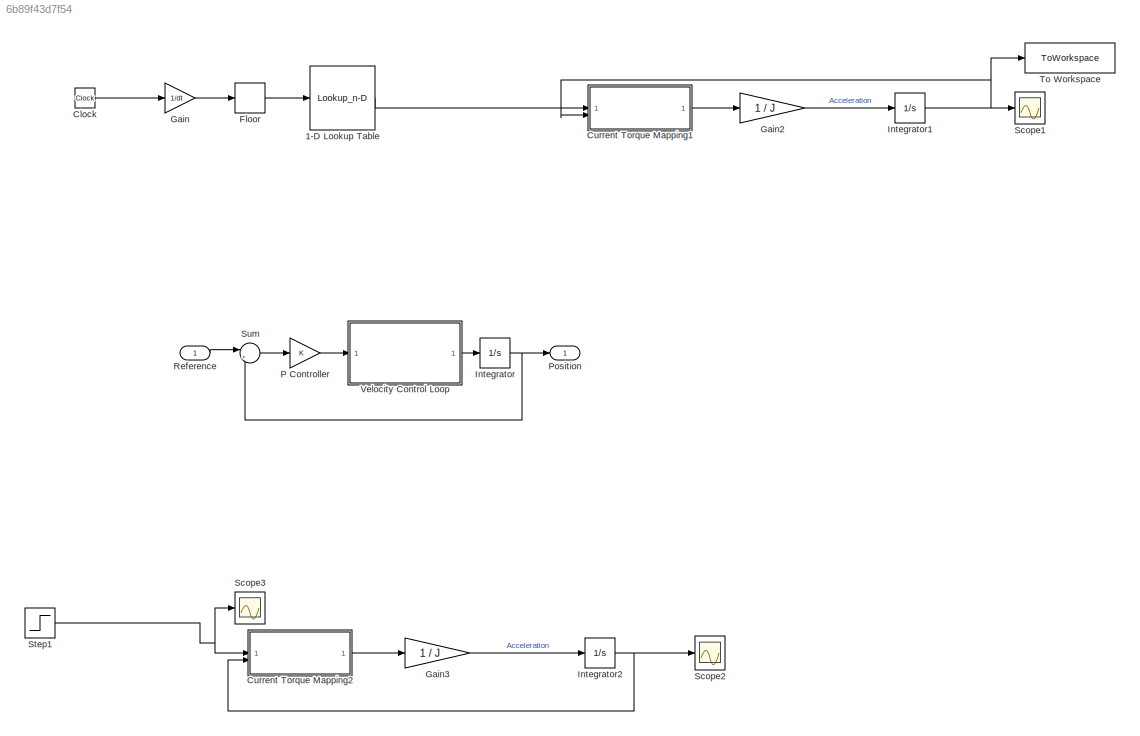
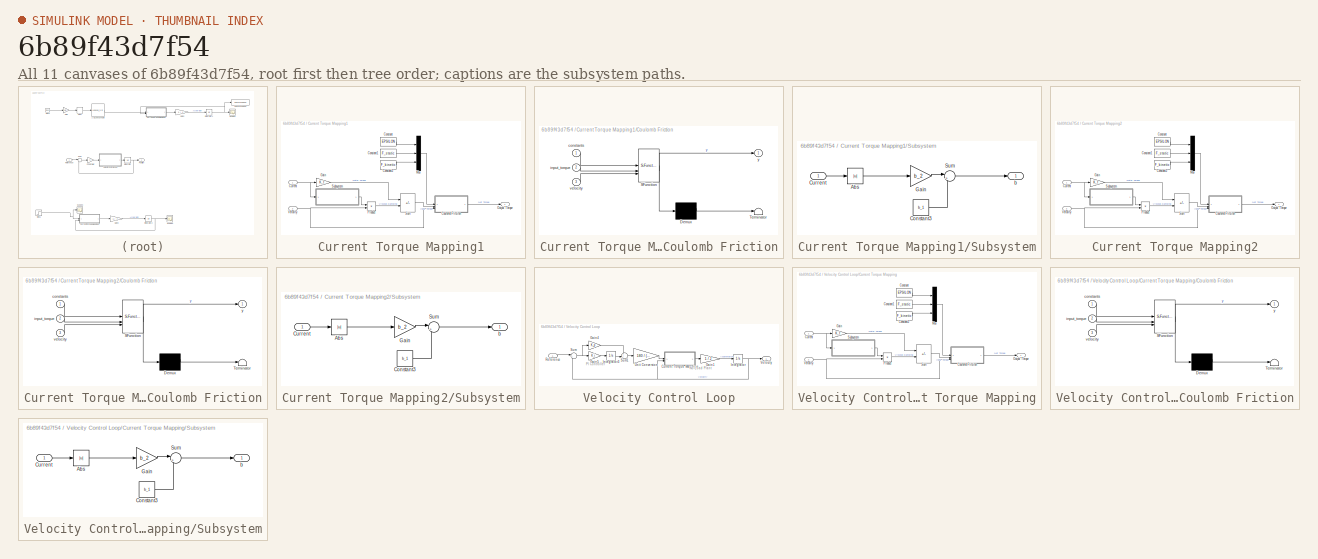
[diagram: thumbnail index - all 11 canvases of the model, root first then tree order]
MODEL slx_6b89f43d7f54
KIND model
CONFIG AbsTol = auto
CONFIG EnableMultiTasking = off
CONFIG FixedStep = auto
CONFIG MaxStep = auto
CONFIG MinStep = auto
CONFIG RelTol = 1e-3
CONFIG SampleTimeConstraint = Unconstrained
CONFIG SolverName = VariableStepAuto
CONFIG StartTime = 0.0
CONFIG StopTime = 10
BLOCK [Lookup_n-D] 1-D Lookup Table
  BreakpointsForDimension1 = [1:numel(currents)]'
  Commented = on
  InputPortMap = u0
  InternalRulePriority = Speed
  NumberOfTableDimensions = 1
  RndMeth = Simplest
  Table = currents
BLOCK [Clock] Clock
  Commented = on
BLOCK [SubSystem] Current Torque Mapping1
  Commented = on
BLOCK [Constant] Current Torque Mapping1/Constant
  Value = EPSILON
BLOCK [Constant] Current Torque Mapping1/Constant1
  Value = F_static
BLOCK [Constant] Current Torque Mapping1/Constant2
  Value = F_kinetic
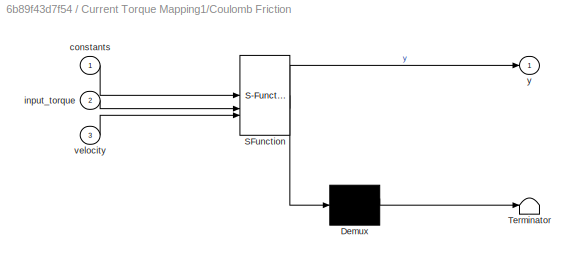
BLOCK [SubSystem] Current Torque Mapping1/Coulomb Friction
  ErrorFcn = Stateflow.Translate.translate
  LibrarySourceBlock = simulink/User-Defined\nFunctions/MATLAB Function
  PermitHierarchicalResolution = ExplicitOnly
  SFBlockType = MATLAB Function
  TreatAsAtomicUnit = on
BLOCK [Demux] Current Torque Mapping1/Coulomb Friction/ Demux 
  Outputs = 1
BLOCK [S-Function] Current Torque Mapping1/Coulomb Friction/ SFunction 
  EnableBusSupport = on
  FunctionName = sf_sfun
  PortCounts = [3 2]
  SFcnIsStateOwnerBlock = off
  SFunctionDeploymentMode = off
  Tag = Stateflow S-Function 2
BLOCK [Terminator] Current Torque Mapping1/Coulomb Friction/ Terminator 
BLOCK [Inport] Current Torque Mapping1/Coulomb Friction/constants
BLOCK [Inport] Current Torque Mapping1/Coulomb Friction/input_torque
  Port = 2
BLOCK [Inport] Current Torque Mapping1/Coulomb Friction/velocity
  Port = 3
BLOCK [Outport] Current Torque Mapping1/Coulomb Friction/y
BLOCK [Inport] Current Torque Mapping1/Current
BLOCK [Gain] Current Torque Mapping1/Gain
  Gain = K_t
BLOCK [Mux] Current Torque Mapping1/Mux
  DisplayOption = bar
  Inputs = 3
BLOCK [Outport] Current Torque Mapping1/Output Torque
BLOCK [Product] Current Torque Mapping1/Product
BLOCK [SubSystem] Current Torque Mapping1/Subsystem
BLOCK [Abs] Current Torque Mapping1/Subsystem/Abs
  SaturateOnIntegerOverflow = off
BLOCK [Constant] Current Torque Mapping1/Subsystem/Constant3
  Value = b_1
BLOCK [Inport] Current Torque Mapping1/Subsystem/Current
BLOCK [Gain] Current Torque Mapping1/Subsystem/Gain
  Gain = b_2
BLOCK [Sum] Current Torque Mapping1/Subsystem/Sum
  Inputs = |++
BLOCK [Outport] Current Torque Mapping1/Subsystem/b
BLOCK [Sum] Current Torque Mapping1/Sum
  IconShape = rectangular
  Inputs = +-
BLOCK [Inport] Current Torque Mapping1/Velocity
  Port = 2
BLOCK [SubSystem] Current Torque Mapping2
  Commented = on
BLOCK [Constant] Current Torque Mapping2/Constant
  Value = EPSILON
BLOCK [Constant] Current Torque Mapping2/Constant1
  Value = F_static
BLOCK [Constant] Current Torque Mapping2/Constant2
  Value = F_kinetic
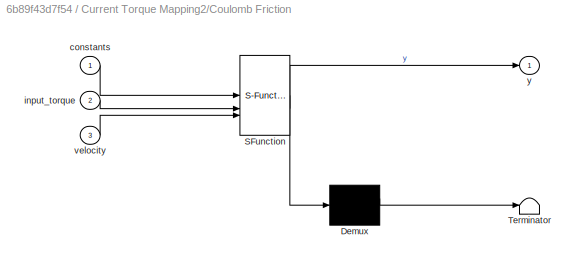
BLOCK [SubSystem] Current Torque Mapping2/Coulomb Friction
  ErrorFcn = Stateflow.Translate.translate
  LibrarySourceBlock = simulink/User-Defined\nFunctions/MATLAB Function
  PermitHierarchicalResolution = ExplicitOnly
  SFBlockType = MATLAB Function
  TreatAsAtomicUnit = on
BLOCK [Demux] Current Torque Mapping2/Coulomb Friction/ Demux 
  Outputs = 1
BLOCK [S-Function] Current Torque Mapping2/Coulomb Friction/ SFunction 
  EnableBusSupport = on
  FunctionName = sf_sfun
  PortCounts = [3 2]
  SFcnIsStateOwnerBlock = off
  SFunctionDeploymentMode = off
  Tag = Stateflow S-Function 3
BLOCK [Terminator] Current Torque Mapping2/Coulomb Friction/ Terminator 
BLOCK [Inport] Current Torque Mapping2/Coulomb Friction/constants
BLOCK [Inport] Current Torque Mapping2/Coulomb Friction/input_torque
  Port = 2
BLOCK [Inport] Current Torque Mapping2/Coulomb Friction/velocity
  Port = 3
BLOCK [Outport] Current Torque Mapping2/Coulomb Friction/y
BLOCK [Inport] Current Torque Mapping2/Current
BLOCK [Gain] Current Torque Mapping2/Gain
  Gain = K_t
BLOCK [Mux] Current Torque Mapping2/Mux
  DisplayOption = bar
  Inputs = 3
BLOCK [Outport] Current Torque Mapping2/Output Torque
BLOCK [Product] Current Torque Mapping2/Product
BLOCK [SubSystem] Current Torque Mapping2/Subsystem
BLOCK [Abs] Current Torque Mapping2/Subsystem/Abs
  SaturateOnIntegerOverflow = off
BLOCK [Constant] Current Torque Mapping2/Subsystem/Constant3
  Value = b_1
BLOCK [Inport] Current Torque Mapping2/Subsystem/Current
BLOCK [Gain] Current Torque Mapping2/Subsystem/Gain
  Gain = b_2
BLOCK [Sum] Current Torque Mapping2/Subsystem/Sum
  Inputs = |++
BLOCK [Outport] Current Torque Mapping2/Subsystem/b
BLOCK [Sum] Current Torque Mapping2/Sum
  IconShape = rectangular
  Inputs = +-
BLOCK [Inport] Current Torque Mapping2/Velocity
  Port = 2
BLOCK [Rounding] Floor
  Commented = on
BLOCK [Gain] Gain
  Commented = on
  Gain = 1/dt
BLOCK [Gain] Gain2
  Commented = on
  Gain = 1 / J
BLOCK [Gain] Gain3
  Commented = on
  Gain = 1 / J
BLOCK [Integrator] Integrator
BLOCK [Integrator] Integrator1
  Commented = on
BLOCK [Integrator] Integrator2
  Commented = on
BLOCK [Gain] P Controller
  Gain = K
BLOCK [Outport] Position
BLOCK [Inport] Reference
BLOCK [Scope] Scope1
  Commented = on
  Floating = off
  NumInputPorts = 1
  ScopeSpecificationString = Simulink.scopes.TimeScopeBlockCfg('CurrentConfiguration', extmgr.ConfigurationSet(extmgr.Configuration('Core','General UI',true),extmgr.Configuration('Core','Source UI',true),extmgr.Configuration('Sources','WiredSimulink',true,'DataLoggingVariableName','ScopeData1'),extmgr.Configuration('Visuals','Time Domain',true,'SerializedDisplays',{struct('MinYLimReal','-0.23088','MaxYLimReal','2.07789','YLab...<+1399ch>
BLOCK [Scope] Scope2
  Commented = on
  Floating = off
  NumInputPorts = 1
  ScopeSpecificationString = Simulink.scopes.TimeScopeBlockCfg('CurrentConfiguration', extmgr.ConfigurationSet(extmgr.Configuration('Core','General UI',true),extmgr.Configuration('Core','Source UI',true),extmgr.Configuration('Sources','WiredSimulink',true,'DataLoggingVariableName','ScopeData1'),extmgr.Configuration('Visuals','Time Domain',true,'SerializedDisplays',{struct('MinYLimReal','-0.1032','MaxYLimReal','0.92881','YLabe...<+1722ch>
BLOCK [Scope] Scope3
  Commented = on
  Floating = off
  NumInputPorts = 1
  ScopeSpecificationString = Simulink.scopes.TimeScopeBlockCfg('CurrentConfiguration', extmgr.ConfigurationSet(extmgr.Configuration('Core','General UI',true),extmgr.Configuration('Core','Source UI',true),extmgr.Configuration('Sources','WiredSimulink',true,'DataLoggingVariableName','ScopeData1'),extmgr.Configuration('Visuals','Time Domain',true,'SerializedDisplays',{struct('MinYLimReal','0.90986','MaxYLimReal','2.90986','YLabe...<+1362ch>
BLOCK [Step] Step1
  After = 0.1 * 180 / (pi * 3)
  Commented = on
  SampleTime = 0
  Time = 0
BLOCK [Sum] Sum
  Inputs = |+-
BLOCK [ToWorkspace] To Workspace
  Commented = on
  FixptAsFi = on
  MaxDataPoints = inf
  SampleTime = -1
  SaveFormat = Timeseries
  VariableName = velocity
BLOCK [SubSystem] Velocity Control Loop
BLOCK [SubSystem] Velocity Control Loop/Current Torque Mapping
BLOCK [Constant] Velocity Control Loop/Current Torque Mapping/Constant
  Value = EPSILON
BLOCK [Constant] Velocity Control Loop/Current Torque Mapping/Constant1
  Value = F_static
BLOCK [Constant] Velocity Control Loop/Current Torque Mapping/Constant2
  Value = F_kinetic
BLOCK [SubSystem] Velocity Control Loop/Current Torque Mapping/Coulomb Friction
  ErrorFcn = Stateflow.Translate.translate
  LibrarySourceBlock = simulink/User-Defined\nFunctions/MATLAB Function
  PermitHierarchicalResolution = ExplicitOnly
  SFBlockType = MATLAB Function
  TreatAsAtomicUnit = on
BLOCK [Demux] Velocity Control Loop/Current Torque Mapping/Coulomb Friction/ Demux 
  Outputs = 1
BLOCK [S-Function] Velocity Control Loop/Current Torque Mapping/Coulomb Friction/ SFunction 
  EnableBusSupport = on
  FunctionName = sf_sfun
  PortCounts = [3 2]
  SFcnIsStateOwnerBlock = off
  SFunctionDeploymentMode = off
  Tag = Stateflow S-Function 1
BLOCK [Terminator] Velocity Control Loop/Current Torque Mapping/Coulomb Friction/ Terminator 
BLOCK [Inport] Velocity Control Loop/Current Torque Mapping/Coulomb Friction/constants
BLOCK [Inport] Velocity Control Loop/Current Torque Mapping/Coulomb Friction/input_torque
  Port = 2
BLOCK [Inport] Velocity Control Loop/Current Torque Mapping/Coulomb Friction/velocity
  Port = 3
BLOCK [Outport] Velocity Control Loop/Current Torque Mapping/Coulomb Friction/y
BLOCK [Inport] Velocity Control Loop/Current Torque Mapping/Current
BLOCK [Gain] Velocity Control Loop/Current Torque Mapping/Gain
  Gain = K_t
BLOCK [Mux] Velocity Control Loop/Current Torque Mapping/Mux
  DisplayOption = bar
  Inputs = 3
BLOCK [Outport] Velocity Control Loop/Current Torque Mapping/Output Torque
BLOCK [Product] Velocity Control Loop/Current Torque Mapping/Product
BLOCK [SubSystem] Velocity Control Loop/Current Torque Mapping/Subsystem
BLOCK [Abs] Velocity Control Loop/Current Torque Mapping/Subsystem/Abs
  SaturateOnIntegerOverflow = off
BLOCK [Constant] Velocity Control Loop/Current Torque Mapping/Subsystem/Constant3
  Value = b_1
BLOCK [Inport] Velocity Control Loop/Current Torque Mapping/Subsystem/Current
BLOCK [Gain] Velocity Control Loop/Current Torque Mapping/Subsystem/Gain
  Gain = b_2
BLOCK [Sum] Velocity Control Loop/Current Torque Mapping/Subsystem/Sum
  Inputs = |++
BLOCK [Outport] Velocity Control Loop/Current Torque Mapping/Subsystem/b
BLOCK [Sum] Velocity Control Loop/Current Torque Mapping/Sum
  IconShape = rectangular
  Inputs = +-
BLOCK [Inport] Velocity Control Loop/Current Torque Mapping/Velocity
  Port = 2
BLOCK [Gain] Velocity Control Loop/Gain1
  Gain = 1 / J
BLOCK [Gain] Velocity Control Loop/Gain4
  Gain = K_p
BLOCK [Gain] Velocity Control Loop/Gain5
  Gain = K_i
BLOCK [Integrator] Velocity Control Loop/Integrator
BLOCK [Integrator] Velocity Control Loop/Integrator3
BLOCK [Inport] Velocity Control Loop/Reference
BLOCK [Sum] Velocity Control Loop/Sum
  Inputs = |+-
BLOCK [Sum] Velocity Control Loop/Sum1
  Inputs = ++|
BLOCK [Gain] Velocity Control Loop/Unit Conversion
  Gain = 180 / (pi * 3)
BLOCK [Outport] Velocity Control Loop/Velocity
ANNOTATION Velocity Control Loop: No-Load Plant
ANNOTATION Velocity Control Loop: PI Controller
LINE 1-D Lookup Table:1 -> Current Torque Mapping1:1
LINE Clock:1 -> Gain:1
LINE Current Torque Mapping1/Constant1:1 -> Current Torque Mapping1/Mux:2
LINE Current Torque Mapping1/Constant2:1 -> Current Torque Mapping1/Mux:3
LINE Current Torque Mapping1/Constant:1 -> Current Torque Mapping1/Mux:1
LINE Current Torque Mapping1/Coulomb Friction:1 -> Current Torque Mapping1/Output Torque:1
NET Current Torque Mapping1/Current:1 -> Current Torque Mapping1/Gain:1, Current Torque Mapping1/Subsystem:1
LINE Current Torque Mapping1/Gain:1 -> Current Torque Mapping1/Sum:1
LINE Current Torque Mapping1/Mux:1 -> Current Torque Mapping1/Coulomb Friction:1
LINE Current Torque Mapping1/Product:1 -> Current Torque Mapping1/Sum:2
LINE Current Torque Mapping1/Subsystem/Abs:1 -> Current Torque Mapping1/Subsystem/Gain:1
LINE Current Torque Mapping1/Subsystem/Constant3:1 -> Current Torque Mapping1/Subsystem/Sum:2
LINE Current Torque Mapping1/Subsystem/Current:1 -> Current Torque Mapping1/Subsystem/Abs:1
LINE Current Torque Mapping1/Subsystem/Gain:1 -> Current Torque Mapping1/Subsystem/Sum:1
LINE Current Torque Mapping1/Subsystem/Sum:1 -> Current Torque Mapping1/Subsystem/b:1
LINE Current Torque Mapping1/Subsystem:1 -> Current Torque Mapping1/Product:1
LINE Current Torque Mapping1/Sum:1 -> Current Torque Mapping1/Coulomb Friction:2
NET Current Torque Mapping1/Velocity:1 -> Current Torque Mapping1/Coulomb Friction:3, Current Torque Mapping1/Product:2
LINE Current Torque Mapping1:1 -> Gain2:1
LINE Current Torque Mapping2/Constant1:1 -> Current Torque Mapping2/Mux:2
LINE Current Torque Mapping2/Constant2:1 -> Current Torque Mapping2/Mux:3
LINE Current Torque Mapping2/Constant:1 -> Current Torque Mapping2/Mux:1
LINE Current Torque Mapping2/Coulomb Friction:1 -> Current Torque Mapping2/Output Torque:1
NET Current Torque Mapping2/Current:1 -> Current Torque Mapping2/Gain:1, Current Torque Mapping2/Subsystem:1
LINE Current Torque Mapping2/Gain:1 -> Current Torque Mapping2/Sum:1
LINE Current Torque Mapping2/Mux:1 -> Current Torque Mapping2/Coulomb Friction:1
LINE Current Torque Mapping2/Product:1 -> Current Torque Mapping2/Sum:2
LINE Current Torque Mapping2/Subsystem/Abs:1 -> Current Torque Mapping2/Subsystem/Gain:1
LINE Current Torque Mapping2/Subsystem/Constant3:1 -> Current Torque Mapping2/Subsystem/Sum:2
LINE Current Torque Mapping2/Subsystem/Current:1 -> Current Torque Mapping2/Subsystem/Abs:1
LINE Current Torque Mapping2/Subsystem/Gain:1 -> Current Torque Mapping2/Subsystem/Sum:1
LINE Current Torque Mapping2/Subsystem/Sum:1 -> Current Torque Mapping2/Subsystem/b:1
LINE Current Torque Mapping2/Subsystem:1 -> Current Torque Mapping2/Product:1
LINE Current Torque Mapping2/Sum:1 -> Current Torque Mapping2/Coulomb Friction:2
NET Current Torque Mapping2/Velocity:1 -> Current Torque Mapping2/Coulomb Friction:3, Current Torque Mapping2/Product:2
LINE Current Torque Mapping2:1 -> Gain3:1
LINE Floor:1 -> 1-D Lookup Table:1
LINE Gain2:1 -> Integrator1:1
LINE Gain3:1 -> Integrator2:1
LINE Gain:1 -> Floor:1
NET Integrator1:1 -> Current Torque Mapping1:2, Scope1:1, To Workspace:1
NET Integrator2:1 -> Current Torque Mapping2:2, Scope2:1
NET Integrator:1 -> Position:1, Sum:2
LINE P Controller:1 -> Velocity Control Loop:1
LINE Reference:1 -> Sum:1
NET Step1:1 -> Current Torque Mapping2:1, Scope3:1
LINE Sum:1 -> P Controller:1
LINE Velocity Control Loop/Current Torque Mapping/Constant1:1 -> Velocity Control Loop/Current Torque Mapping/Mux:2
LINE Velocity Control Loop/Current Torque Mapping/Constant2:1 -> Velocity Control Loop/Current Torque Mapping/Mux:3
LINE Velocity Control Loop/Current Torque Mapping/Constant:1 -> Velocity Control Loop/Current Torque Mapping/Mux:1
LINE Velocity Control Loop/Current Torque Mapping/Coulomb Friction:1 -> Velocity Control Loop/Current Torque Mapping/Output Torque:1
NET Velocity Control Loop/Current Torque Mapping/Current:1 -> Velocity Control Loop/Current Torque Mapping/Gain:1, Velocity Control Loop/Current Torque Mapping/Subsystem:1
LINE Velocity Control Loop/Current Torque Mapping/Gain:1 -> Velocity Control Loop/Current Torque Mapping/Sum:1
LINE Velocity Control Loop/Current Torque Mapping/Mux:1 -> Velocity Control Loop/Current Torque Mapping/Coulomb Friction:1
LINE Velocity Control Loop/Current Torque Mapping/Product:1 -> Velocity Control Loop/Current Torque Mapping/Sum:2
LINE Velocity Control Loop/Current Torque Mapping/Subsystem/Abs:1 -> Velocity Control Loop/Current Torque Mapping/Subsystem/Gain:1
LINE Velocity Control Loop/Current Torque Mapping/Subsystem/Constant3:1 -> Velocity Control Loop/Current Torque Mapping/Subsystem/Sum:2
LINE Velocity Control Loop/Current Torque Mapping/Subsystem/Current:1 -> Velocity Control Loop/Current Torque Mapping/Subsystem/Abs:1
LINE Velocity Control Loop/Current Torque Mapping/Subsystem/Gain:1 -> Velocity Control Loop/Current Torque Mapping/Subsystem/Sum:1
LINE Velocity Control Loop/Current Torque Mapping/Subsystem/Sum:1 -> Velocity Control Loop/Current Torque Mapping/Subsystem/b:1
LINE Velocity Control Loop/Current Torque Mapping/Subsystem:1 -> Velocity Control Loop/Current Torque Mapping/Product:1
LINE Velocity Control Loop/Current Torque Mapping/Sum:1 -> Velocity Control Loop/Current Torque Mapping/Coulomb Friction:2
NET Velocity Control Loop/Current Torque Mapping/Velocity:1 -> Velocity Control Loop/Current Torque Mapping/Coulomb Friction:3, Velocity Control Loop/Current Torque Mapping/Product:2
LINE Velocity Control Loop/Current Torque Mapping:1 -> Velocity Control Loop/Gain1:1
LINE Velocity Control Loop/Gain1:1 -> Velocity Control Loop/Integrator:1
LINE Velocity Control Loop/Gain4:1 -> Velocity Control Loop/Sum1:1
LINE Velocity Control Loop/Gain5:1 -> Velocity Control Loop/Integrator3:1
LINE Velocity Control Loop/Integrator3:1 -> Velocity Control Loop/Sum1:2
NET Velocity Control Loop/Integrator:1 -> Velocity Control Loop/Current Torque Mapping:2, Velocity Control Loop/Sum:2, Velocity Control Loop/Velocity:1
LINE Velocity Control Loop/Reference:1 -> Velocity Control Loop/Sum:1
LINE Velocity Control Loop/Sum1:1 -> Velocity Control Loop/Unit Conversion:1
NET Velocity Control Loop/Sum:1 -> Velocity Control Loop/Gain4:1, Velocity Control Loop/Gain5:1
LINE Velocity Control Loop/Unit Conversion:1 -> Velocity Control Loop/Current Torque Mapping:1
LINE Velocity Control Loop:1 -> Integrator:1
note: NET lines group one-source signal fan-out (src -> all destinations, sorted); 1:1 wires keep LINE
CHART Current Torque Mapping1/Coulomb Friction states=1 transitions=1
  STATE_LABEL 'eML_blk_kernel()'
  STATE_LABEL 'SCRIPT:\nfunction y = fcn(constants, input_torque, velocity)\n    EPSILON = constants(1);\n    F_stat = constants(2);\n    F_c = constants(3);\n\n\n    if abs(velocity) < EPSILON % no motion\n        if abs(input_torque) < abs(F_stat) % insufficient torque\n            y = 0;\n            return\n        end\n\n        % reduce torque by static friction\n        static_friction = -1 * sign(input_torque) * F_sta...<+210ch>'  <repeated x3 — deduplicated; at blocks: Coulomb Friction>
CHART Current Torque Mapping2/Coulomb Friction states=1 transitions=1
  STATE_LABEL 'eML_blk_kernel()'
CHART Velocity Control Loop/Current Torque Mapping/Coulomb Friction states=1 transitions=1
  STATE_LABEL 'eML_blk_kernel()'
CHART  states=0 transitions=0
CHART  states=0 transitions=0
CHART  states=0 transitions=0
